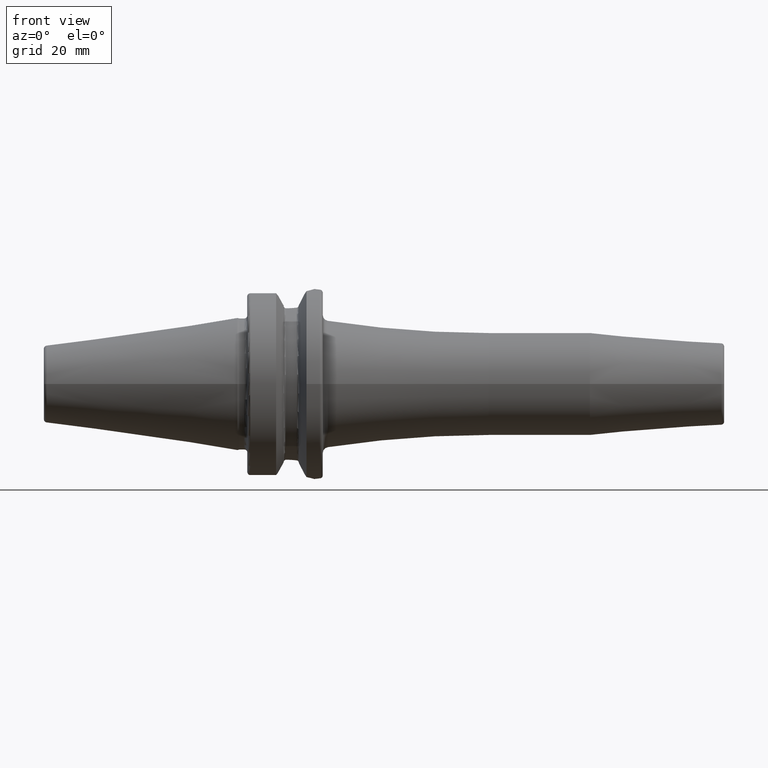
[diagram: clean part render]
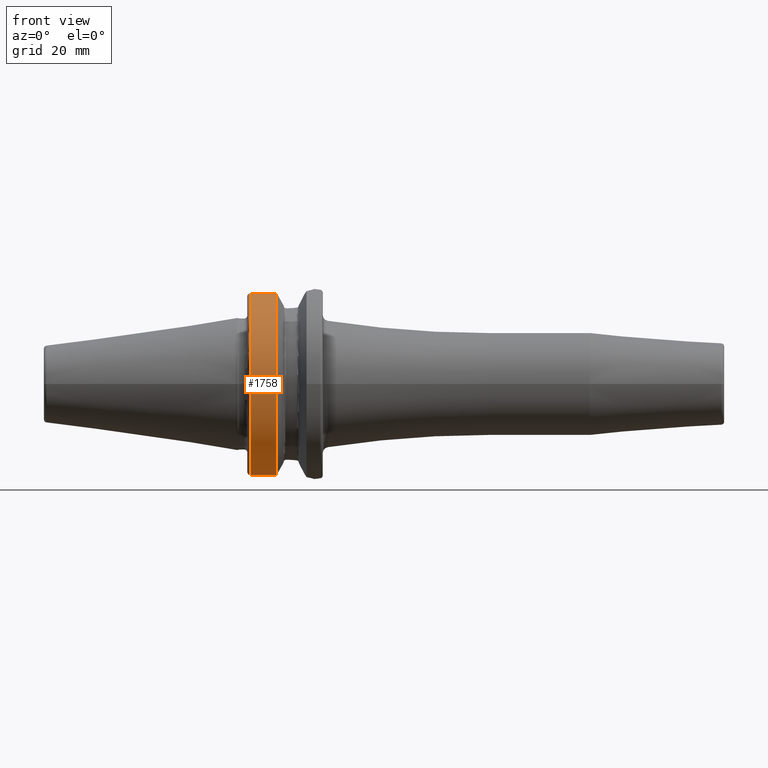
[diagram: same view with one face highlighted and labeled with its STEP entity id]
A machine part, front view. The second image highlights one B-rep face of the part: STEP entity #1758.
In plain terms, the highlighted cylindrical surface (partial cylindrical patch) has radius 31.4875 mm, axis along (1, 0, 0).
Its self-contained STEP definition (entity closure, byte-faithful):
#210=CARTESIAN_POINT('',(1.157272253103E1,0.E0,0.E0));
#211=DIRECTION('',(1.E0,0.E0,0.E0));
#212=DIRECTION('',(0.E0,-2.983189831898E-1,9.544662300305E-1));
#213=AXIS2_PLACEMENT_3D('',#210,#211,#212);
#215=DIRECTION('',(9.999999999998E-1,-3.572441507671E-7,4.802508939409E-7));
#216=VECTOR('',#215,8.572722533299E0);
#217=CARTESIAN_POINT('',(2.999999997734E0,-9.052776400559E0,-3.015808496187E1));
#218=LINE('',#217,#216);
#219=CARTESIAN_POINT('',(3.E0,0.E0,0.E0));
#220=DIRECTION('',(-1.E0,0.E0,0.E0));
#221=DIRECTION('',(0.E0,-2.875039130802E-1,-9.577794631143E-1));
#222=AXIS2_PLACEMENT_3D('',#219,#220,#221);
#224=DIRECTION('',(-9.999999999911E-1,2.496639374553E-6,3.395432034657E-6));
#225=VECTOR('',#224,8.572722551500E0);
#226=CARTESIAN_POINT('',(1.157272253103E1,-9.393318983190E0,3.005375541808E1));
#227=LINE('',#226,#225);
#606=CARTESIAN_POINT('',(2.999999997734E0,-9.052776400559E0,-3.015808496187E1));
#1360=CARTESIAN_POINT('',(1.157272253103E1,-9.393318983190E0,3.005375541808E1));
#1361=CARTESIAN_POINT('',(1.157272253103E1,-9.052779463114E0,
-3.015808084481E1));
#1362=VERTEX_POINT('',#1360);
#1363=VERTEX_POINT('',#1361);
#1376=CARTESIAN_POINT('',(3.E0,-9.393347656107E0,3.005374645633E1));
#1377=VERTEX_POINT('',#1376);
#1398=VERTEX_POINT('',#606);
#1744=CARTESIAN_POINT('',(-7.002E1,0.E0,0.E0));
#1745=DIRECTION('',(1.E0,0.E0,0.E0));
#1746=DIRECTION('',(0.E0,-1.E0,0.E0));
#1747=AXIS2_PLACEMENT_3D('',#1744,#1745,#1746);
#1748=CYLINDRICAL_SURFACE('',#1747,3.14875E1);
#1749=ORIENTED_EDGE('',*,*,#1735,.T.);
#1751=ORIENTED_EDGE('',*,*,#1750,.F.);
#1753=ORIENTED_EDGE('',*,*,#1752,.T.);
#1755=ORIENTED_EDGE('',*,*,#1754,.F.);
#1756=EDGE_LOOP('',(#1749,#1751,#1753,#1755));
#1757=FACE_OUTER_BOUND('',#1756,.F.);
#1758=ADVANCED_FACE('',(#1757),#1748,.T.);
#214=CIRCLE('',#213,3.14875E1);
#223=CIRCLE('',#222,3.14875E1);
#1735=EDGE_CURVE('',#1362,#1363,#214,.T.);
#1750=EDGE_CURVE('',#1398,#1363,#218,.T.);
#1752=EDGE_CURVE('',#1398,#1377,#223,.T.);
#1754=EDGE_CURVE('',#1362,#1377,#227,.T.);